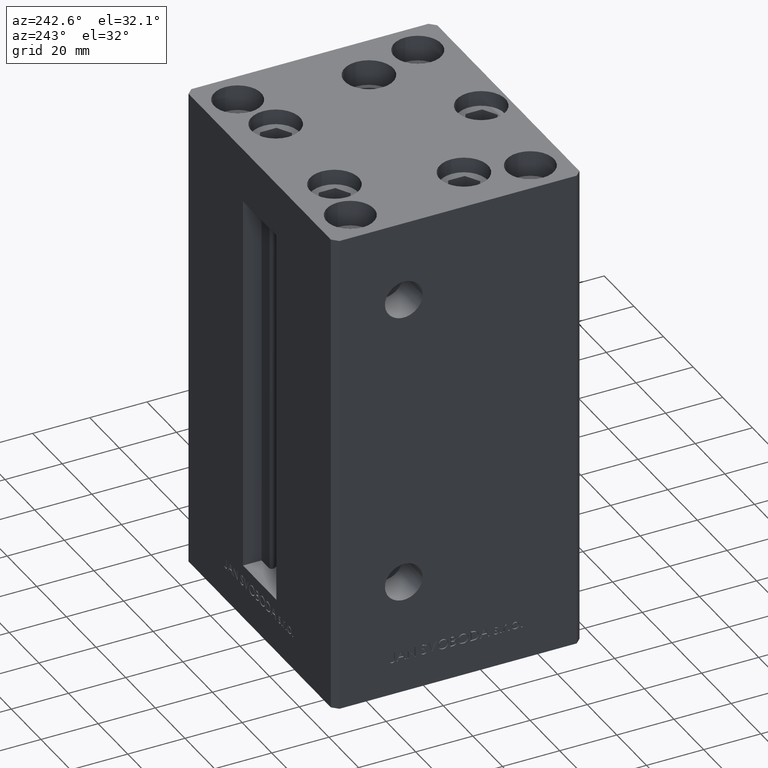
[diagram: clean part render]
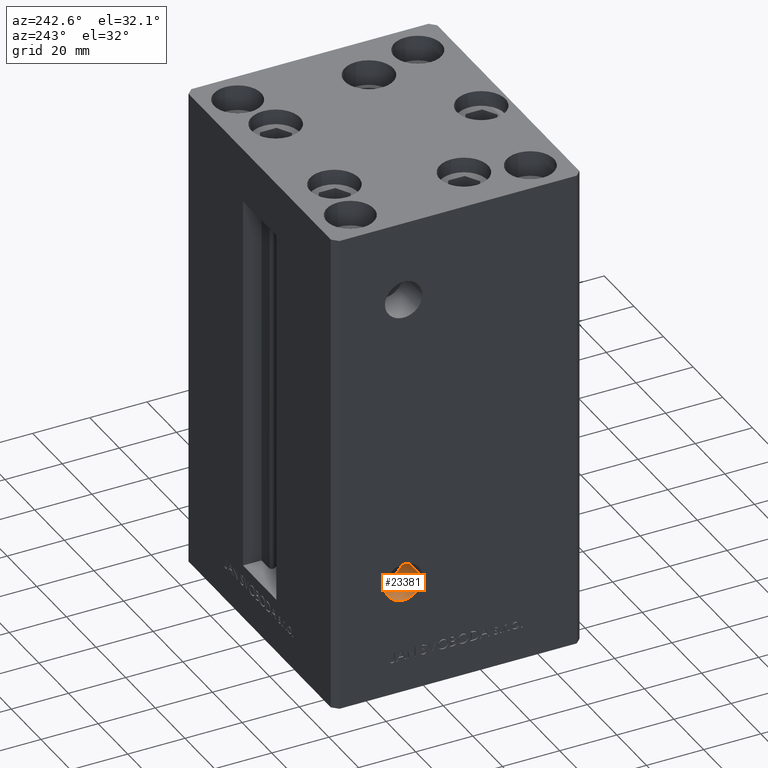
[diagram: same view with one face highlighted and labeled with its STEP entity id]
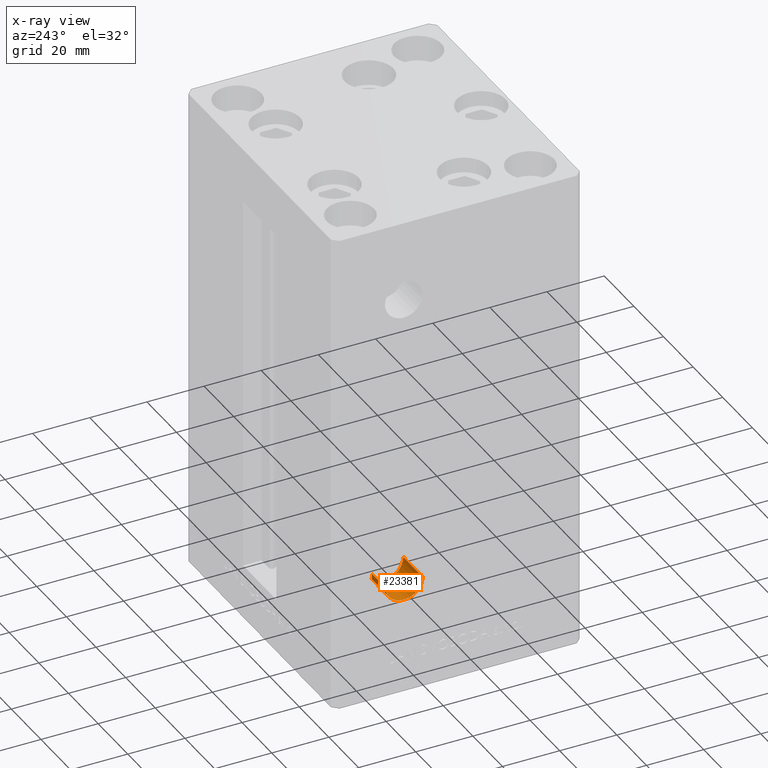
[diagram: x-ray of the same camera — body ghosted, the highlighted face saturated]
A machine part, auxiliary view. The second image highlights one B-rep face of the part: STEP entity #23381.
The next image is the same camera in x-ray: the body ghosted, the highlighted face saturated — about 0% of this face is hidden behind the body in this view.
In plain terms, the highlighted cylindrical surface (edge-blend (fillet) strip) has radius 6.58 mm, axis along (-1, -0, -0).
Its self-contained STEP definition (entity closure, byte-faithful):
#211 = DIRECTION ( 'NONE',  ( 0.000000000000000000, -1.000000000000000000, 0.000000000000000000 ) ) ;
#791 = EDGE_CURVE ( 'NONE', #44266, #34474, #47502, .T. ) ;
#3172 = CARTESIAN_POINT ( 'NONE',  ( -40.04583943676119873, 25.06659861969732006, 18.45071686560036639 ) ) ;
#4011 = DIRECTION ( 'NONE',  ( -1.000000000000000000, -2.275047181608927644E-16, 0.000000000000000000 ) ) ;
#4587 = ORIENTED_EDGE ( 'NONE', *, *, #30382, .T. ) ;
#5810 = DIRECTION ( 'NONE',  ( 0.000000000000000000, -1.000000000000000000, 0.000000000000000000 ) ) ;
#6213 = CARTESIAN_POINT ( 'NONE',  ( -39.73623569116318777, 24.97355878682093788, 18.23644275112909341 ) ) ;
#7531 = CARTESIAN_POINT ( 'NONE',  ( -41.24285368155884157, 25.57999999999997698, 21.00000000000001776 ) ) ;
#8870 = CARTESIAN_POINT ( 'NONE',  ( -37.00000000000001421, 12.41999999999997328, 21.00000000000001776 ) ) ;
#8963 = CARTESIAN_POINT ( 'NONE',  ( -37.00000000000001421, 25.57999999999997698, 21.00000000000001776 ) ) ;
#9369 = DIRECTION ( 'NONE',  ( -1.000000000000000000, -2.275047181608927644E-16, -0.000000000000000000 ) ) ;
#9616 = DIRECTION ( 'NONE',  ( -1.000000000000000000, -2.275047181608927644E-16, 0.000000000000000000 ) ) ;
#10272 = CARTESIAN_POINT ( 'NONE',  ( -38.78603524681748382, 24.79108800882385566, 17.87566865245326753 ) ) ;
#10524 = CARTESIAN_POINT ( 'NONE',  ( -41.24285368155883447, 25.57999999999997698, 20.74167099456465380 ) ) ;
#10945 = CIRCLE ( 'NONE', #23937, 6.580000000000002736 ) ;
#13818 = CARTESIAN_POINT ( 'NONE',  ( -40.14549677985927900, 25.09929356313580584, 18.52954937151377379 ) ) ;
#14072 = CARTESIAN_POINT ( 'NONE',  ( -41.10360492379567177, 25.50548961097011613, 19.98027961849365752 ) ) ;
#14578 = CARTESIAN_POINT ( 'NONE',  ( -37.24834487782856485, 24.78728268352677944, 17.86788360454992031 ) ) ;
#14747 = AXIS2_PLACEMENT_3D ( 'NONE', #37317, #9616, #5810 ) ;
#15068 = EDGE_LOOP ( 'NONE', ( #45021, #4587, #35691, #42116, #40773 ) ) ;
#16187 = CARTESIAN_POINT ( 'NONE',  ( -50.00000000000000711, 12.41999999999996973, 21.00000000000001776 ) ) ;
#16248 = EDGE_CURVE ( 'NONE', #44266, #35431, #30193, .T. ) ;
#18527 = CARTESIAN_POINT ( 'NONE',  ( -50.00000000000000711, 25.57999999999997343, 21.00000000000001776 ) ) ;
#20803 = LINE ( 'NONE', #8870, #49951 ) ;
#22476 = CARTESIAN_POINT ( 'NONE',  ( -41.24285368155884157, 25.57999999999997698, 21.00000000000001776 ) ) ;
#23381 = ADVANCED_FACE ( 'NONE', ( #25892 ), #41355, .F. ) ;
#23554 = EDGE_CURVE ( 'NONE', #30787, #39123, #10945, .T. ) ;
#23937 = AXIS2_PLACEMENT_3D ( 'NONE', #46685, #4011, #211 ) ;
#24124 = CARTESIAN_POINT ( 'NONE',  ( -37.00000000000001421, 24.82448503859065170, 17.93866466468744036 ) ) ;
#25892 = FACE_OUTER_BOUND ( 'NONE', #15068, .T. ) ;
#26048 = CARTESIAN_POINT ( 'NONE',  ( -38.01531075402076709, 24.74511756129724560, 17.79213699011054217 ) ) ;
#26089 = VECTOR ( 'NONE', #36659, 1000.000000000000000 ) ;
#26301 = CARTESIAN_POINT ( 'NONE',  ( -38.27830139285268274, 24.75093340903181982, 17.80235842845259597 ) ) ;
#26545 = CARTESIAN_POINT ( 'NONE',  ( -37.50116566256372863, 24.76354429364534937, 17.82536331865658141 ) ) ;
#29360 = CARTESIAN_POINT ( 'NONE',  ( -37.00000000000001421, 24.82448503859065170, 17.93866466468744036 ) ) ;
#30193 = CIRCLE ( 'NONE', #14747, 6.580000000000002736 ) ;
#30364 = CARTESIAN_POINT ( 'NONE',  ( -40.66049371594825601, 25.29399155180306735, 19.07072997121893110 ) ) ;
#30382 = EDGE_CURVE ( 'NONE', #34474, #30787, #47579, .T. ) ;
#30787 = VERTEX_POINT ( 'NONE', #18527 ) ;
#33172 = CARTESIAN_POINT ( 'NONE',  ( -39.03652242811549655, 24.82563406795359384, 17.93916213294748729 ) ) ;
#34474 = VERTEX_POINT ( 'NONE', #7531 ) ;
#35431 = VERTEX_POINT ( 'NONE', #37170 ) ;
#35691 = ORIENTED_EDGE ( 'NONE', *, *, #23554, .T. ) ;
#36090 = AXIS2_PLACEMENT_3D ( 'NONE', #47983, #9369, #40355 ) ;
#36659 = DIRECTION ( 'NONE',  ( -1.000000000000000000, -2.275047181608927644E-16, -0.000000000000000000 ) ) ;
#36823 = DIRECTION ( 'NONE',  ( -1.000000000000000000, -2.275047181608927644E-16, -0.000000000000000000 ) ) ;
#37170 = CARTESIAN_POINT ( 'NONE',  ( -37.00000000000001421, 12.41999999999997328, 21.00000000000001776 ) ) ;
#37317 = CARTESIAN_POINT ( 'NONE',  ( -37.00000000000001421, 18.99999999999997513, 21.00000000000001776 ) ) ;
#37970 = CARTESIAN_POINT ( 'NONE',  ( -39.51373287116918931, 24.91743574785706627, 18.12064331628272029 ) ) ;
#39123 = VERTEX_POINT ( 'NONE', #16187 ) ;
#40355 = DIRECTION ( 'NONE',  ( 0.000000000000000000, -1.000000000000000000, 0.000000000000000000 ) ) ;
#40773 = ORIENTED_EDGE ( 'NONE', *, *, #16248, .F. ) ;
#41355 = CYLINDRICAL_SURFACE ( 'NONE', #36090, 6.580000000000002736 ) ;
#41520 = CARTESIAN_POINT ( 'NONE',  ( -40.33132138236146602, 25.16461209274085320, 18.69737844552535933 ) ) ;
#42116 = ORIENTED_EDGE ( 'NONE', *, *, #45237, .F. ) ;
#44266 = VERTEX_POINT ( 'NONE', #24124 ) ;
#44837 = CARTESIAN_POINT ( 'NONE',  ( -41.02066714448617546, 25.46236490725794965, 19.73957542390133924 ) ) ;
#45021 = ORIENTED_EDGE ( 'NONE', *, *, #791, .T. ) ;
#45237 = EDGE_CURVE ( 'NONE', #35431, #39123, #20803, .T. ) ;
#45341 = CARTESIAN_POINT ( 'NONE',  ( -41.21563832400146055, 25.56483458558996702, 20.48602373718105696 ) ) ;
#46685 = CARTESIAN_POINT ( 'NONE',  ( -50.00000000000000711, 18.99999999999997158, 21.00000000000001776 ) ) ;
#47502 = B_SPLINE_CURVE_WITH_KNOTS ( 'NONE', 3,
 ( #29360, #14578, #26545, #26048, #26301, #10272, #33172, #37970, #6213, #3172, #13818, #41520, #48898, #30364, #48644, #44837, #14072, #45341, #10524, #22476 ),
 .UNSPECIFIED., .F., .F.,
 ( 4, 2, 2, 2, 2, 2, 2, 2, 2, 4 ),
 ( 0.000000000000000000, 0.0007715096779562214107, 0.001543019355912442821, 0.002314529033868664015, 0.003086038711824885643, 0.003471793550803007299, 0.003857548389781128954, 0.004629058067737372266, 0.005400567745693615578, 0.006172077423649858889 ),
 .UNSPECIFIED. ) ;
#47579 = LINE ( 'NONE', #8963, #26089 ) ;
#47983 = CARTESIAN_POINT ( 'NONE',  ( -37.00000000000001421, 18.99999999999997513, 21.00000000000001776 ) ) ;
#48644 = CARTESIAN_POINT ( 'NONE',  ( -40.79989431457905624, 25.35686893041695456, 19.28505168938184511 ) ) ;
#48898 = CARTESIAN_POINT ( 'NONE',  ( -40.41807101410478964, 25.19738153711735151, 18.78666197612588817 ) ) ;
#49951 = VECTOR ( 'NONE', #36823, 1000.000000000000000 ) ;